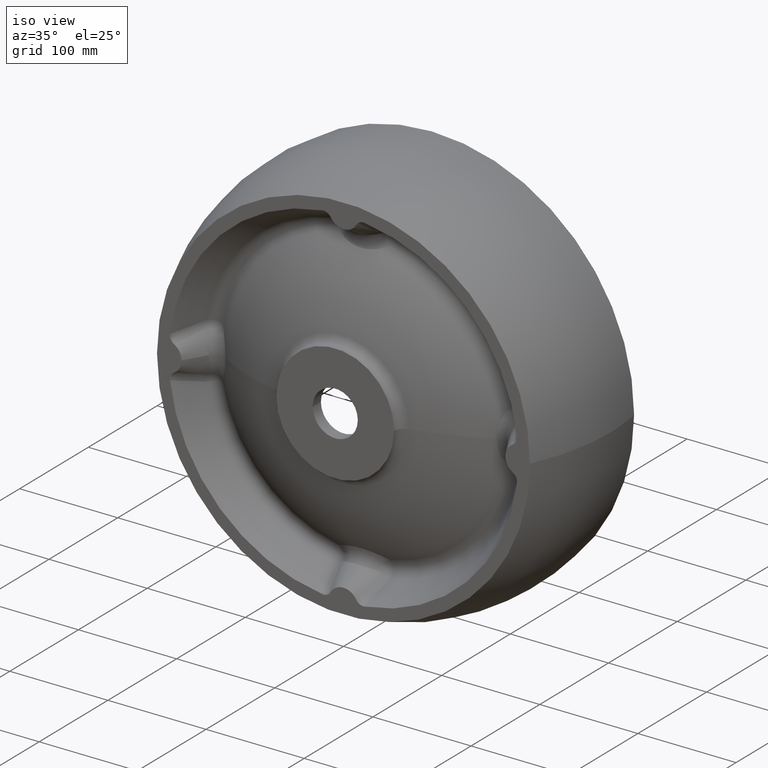
[diagram: clean part render]
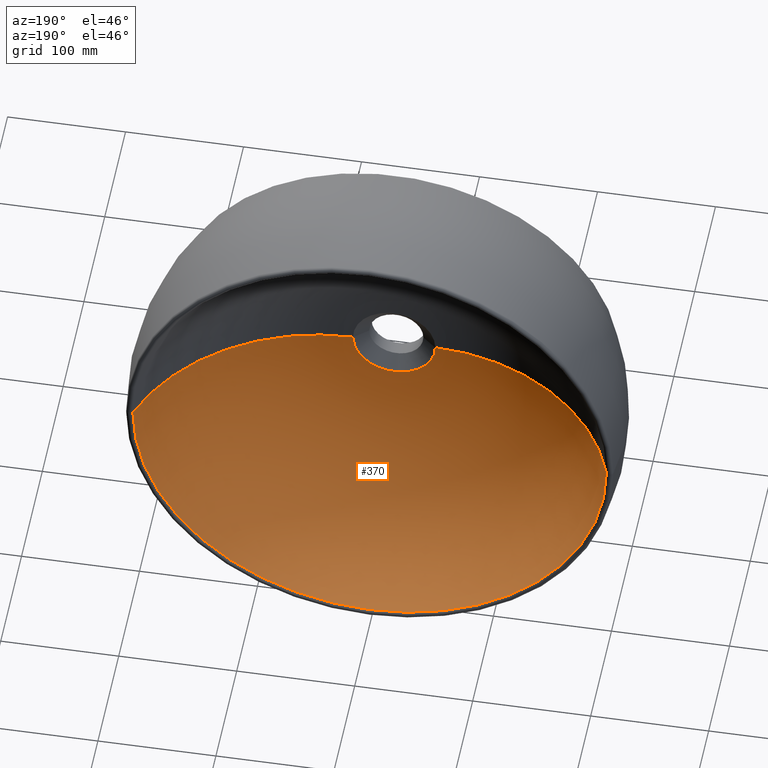
[diagram: tour spotlight — one face highlighted and labeled with its STEP entity id]
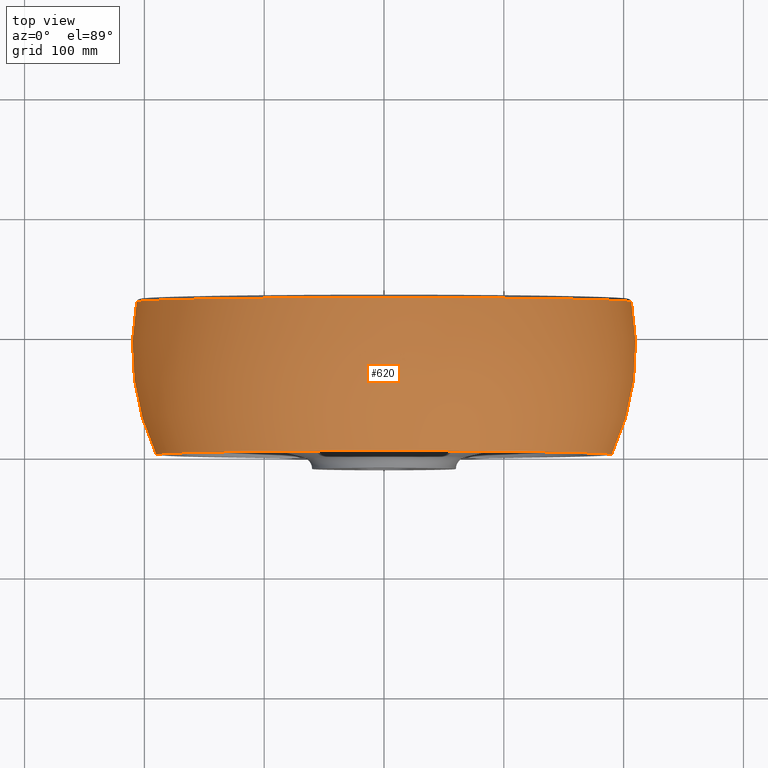
[diagram: tour spotlight — one face highlighted and labeled with its STEP entity id]
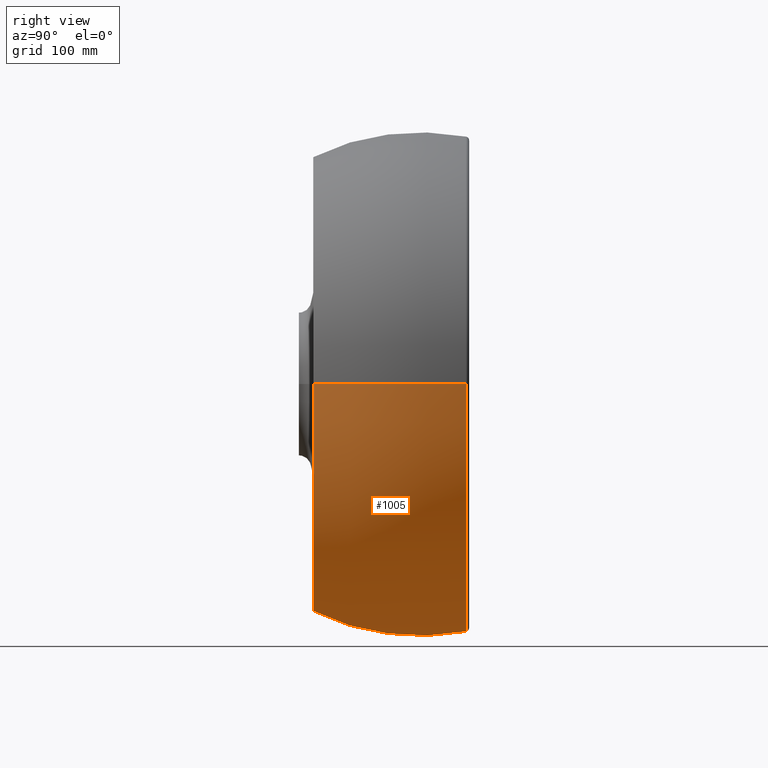
[diagram: tour spotlight — one face highlighted and labeled with its STEP entity id]
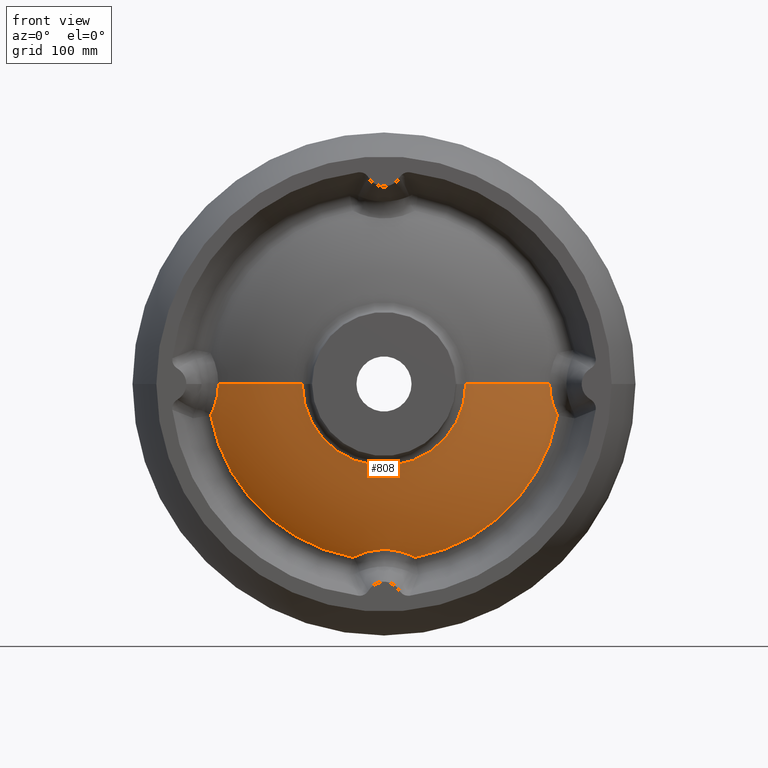
[diagram: tour spotlight — one face highlighted and labeled with its STEP entity id]
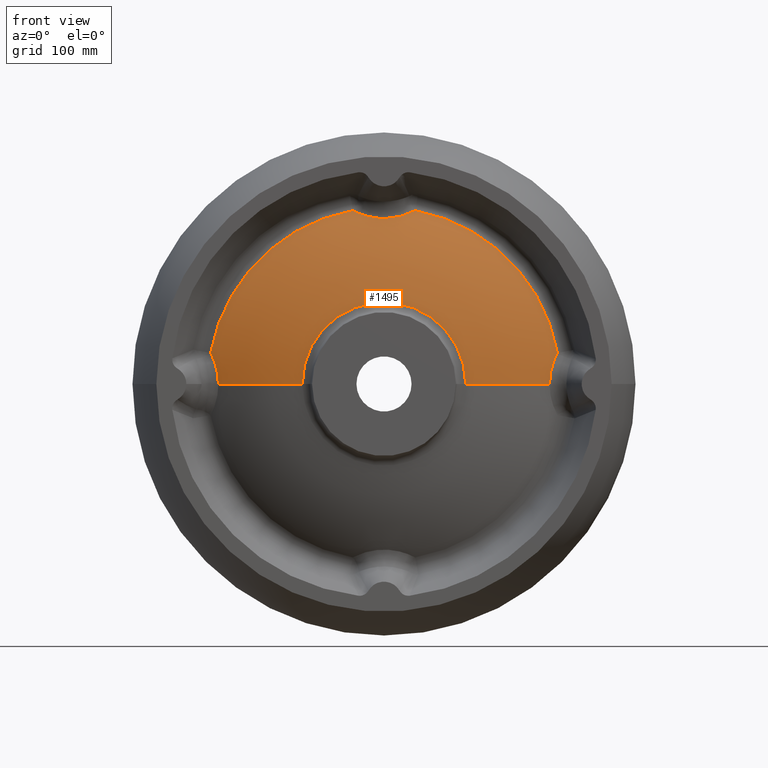
[diagram: tour spotlight — one face highlighted and labeled with its STEP entity id]
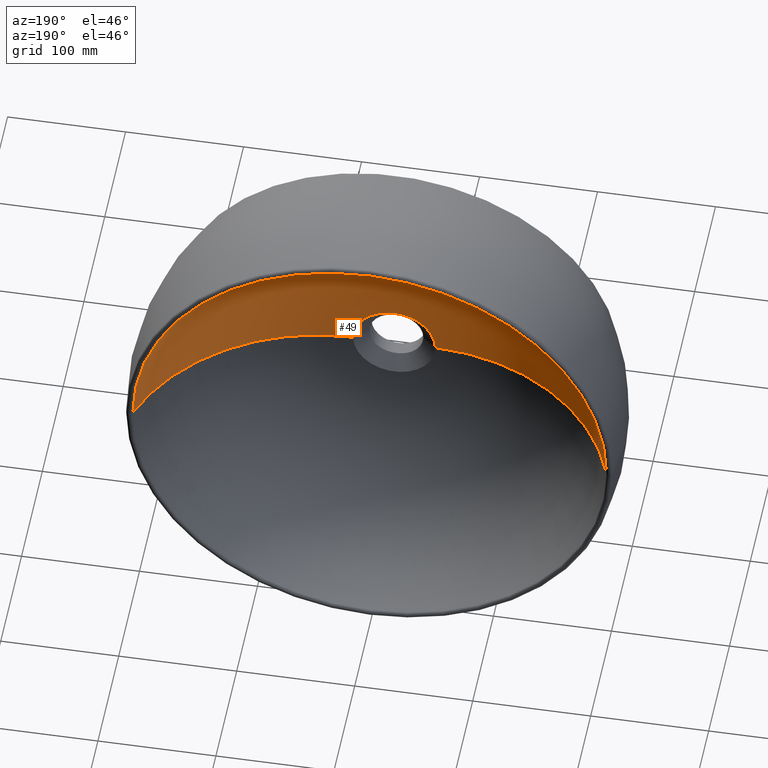
[diagram: tour spotlight — one face highlighted and labeled with its STEP entity id]
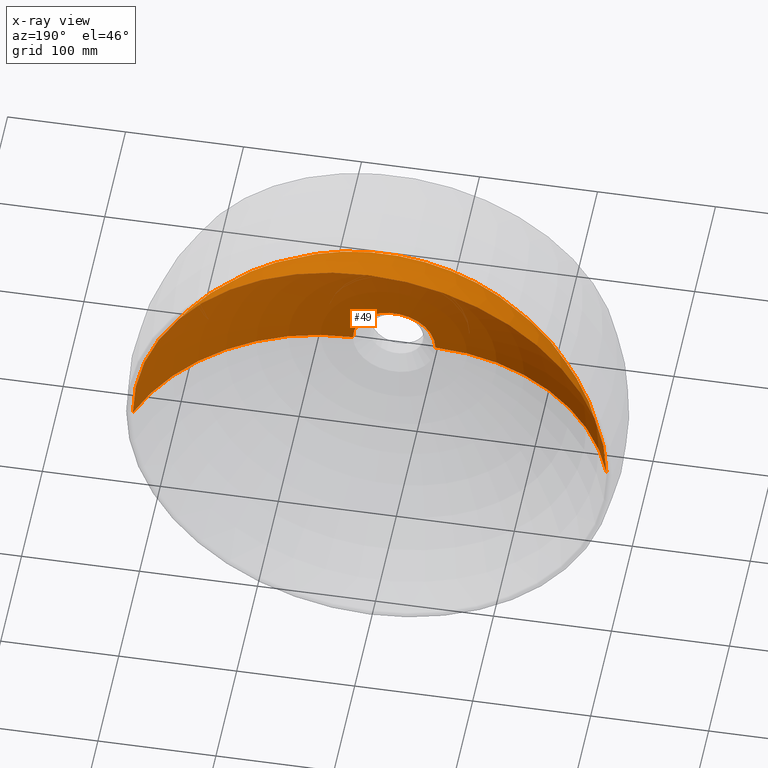
[diagram: x-ray of the same camera — body ghosted, this tour face saturated]
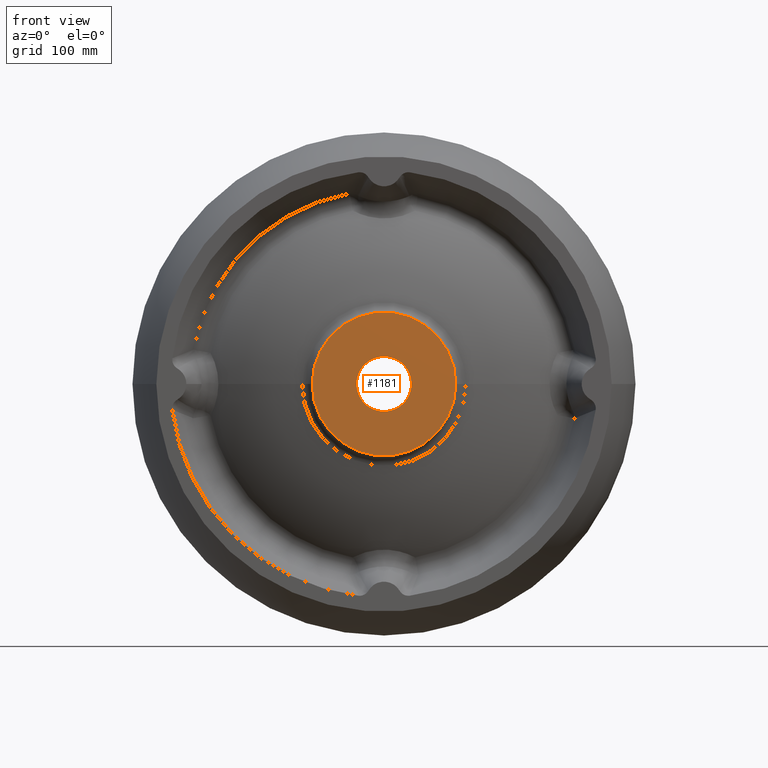
[diagram: tour spotlight — one face highlighted and labeled with its STEP entity id]
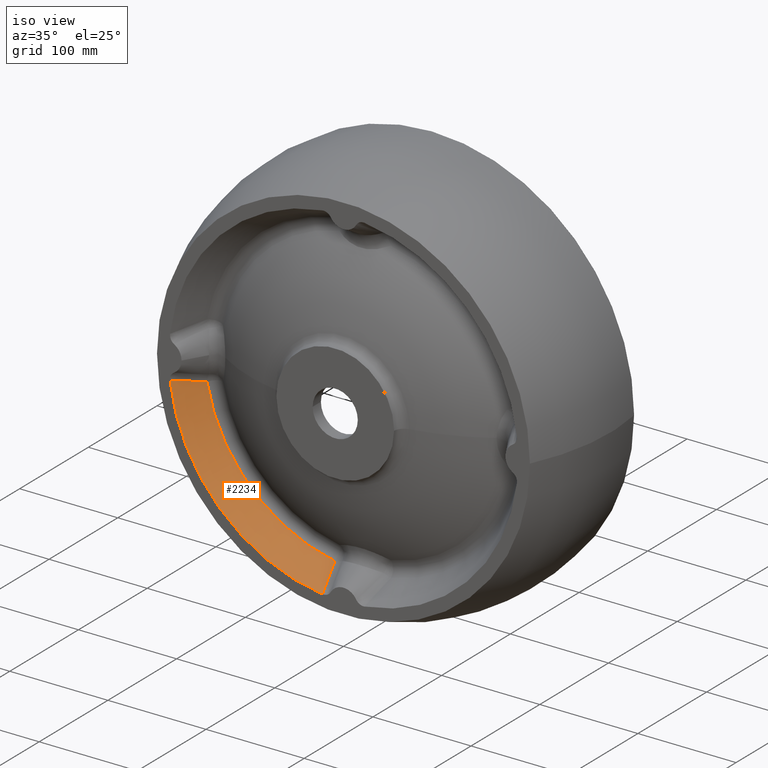
[diagram: tour spotlight — one face highlighted and labeled with its STEP entity id]
A machine part: a face-by-face anatomy tour. The part has 51 B-rep faces; the first image is the clean iso view, then the 8 largest visible faces are spotlighted one at a time (largest first), each with its STEP entity span.

Face 1 — auxiliary view, entity #370. In plain terms, the highlighted toroidal blend (fillet) surface has major radius 34.9175 mm and minor (blend) radius 175.447 mm.
Definition (entity closure, byte-faithful):
#37 = VERTEX_POINT ( 'NONE', #1243 ) ;
#73 = CARTESIAN_POINT ( 'NONE',  ( 200.6871858738753900, 127.9825983199425500, 2.457709198103315300E-014 ) ) ;
#122 = DIRECTION ( 'NONE',  ( -1.246832498358330100E-016, 1.000000000000000000, -0.0000000000000000000 ) ) ;
#141 = DIRECTION ( 'NONE',  ( -1.000000000000000000, -1.490417433511954700E-016, 0.0000000000000000000 ) ) ;
#165 = DIRECTION ( 'NONE',  ( -1.224646799147353200E-016, -1.526929428187426500E-032, 1.000000000000000000 ) ) ;
#167 = CIRCLE ( 'NONE', #792, 175.4473580837705500 ) ;
#184 = EDGE_LOOP ( 'NONE', ( #2058, #474, #247, #1208 ) ) ;
#236 = CARTESIAN_POINT ( 'NONE',  ( -200.6871858738754500, 127.9825983199425000, 0.0000000000000000000 ) ) ;
#247 = ORIENTED_EDGE ( 'NONE', *, *, #408, .T. ) ;
#289 = FACE_OUTER_BOUND ( 'NONE', #184, .T. ) ;
#336 = VERTEX_POINT ( 'NONE', #73 ) ;
#370 = ADVANCED_FACE ( 'NONE', ( #289 ), #778, .F. ) ;
#395 = AXIS2_PLACEMENT_3D ( 'NONE', #2262, #2094, #2229 ) ;
#408 = EDGE_CURVE ( 'NONE', #336, #618, #2152, .T. ) ;
#422 = VERTEX_POINT ( 'NONE', #2117 ) ;
#439 = CIRCLE ( 'NONE', #1444, 34.91753592594217500 ) ;
#474 = ORIENTED_EDGE ( 'NONE', *, *, #546, .T. ) ;
#544 = AXIS2_PLACEMENT_3D ( 'NONE', #1172, #1341, #2089 ) ;
#546 = EDGE_CURVE ( 'NONE', #422, #336, #167, .T. ) ;
#618 = VERTEX_POINT ( 'NONE', #236 ) ;
#661 = EDGE_CURVE ( 'NONE', #37, #618, #992, .T. ) ;
#778 = TOROIDAL_SURFACE ( 'NONE', #395, 34.91753592594216100, 175.4473580837705500 ) ;
#792 = AXIS2_PLACEMENT_3D ( 'NONE', #1062, #165, #2187 ) ;
#811 = EDGE_CURVE ( 'NONE', #422, #37, #439, .T. ) ;
#891 = CARTESIAN_POINT ( 'NONE',  ( -1.246832498358331900E-015, 10.00000000000001400, 0.0000000000000000000 ) ) ;
#903 = DIRECTION ( 'NONE',  ( -1.000000000000000000, -1.383026798386234700E-016, 0.0000000000000000000 ) ) ;
#992 = CIRCLE ( 'NONE', #544, 175.4473580837705500 ) ;
#1062 = CARTESIAN_POINT ( 'NONE',  ( 34.91753592594214000, 185.4473580837705500, 4.276164860581778200E-015 ) ) ;
#1172 = CARTESIAN_POINT ( 'NONE',  ( -34.91753592594218200, 185.4473580837705500, 0.0000000000000000000 ) ) ;
#1208 = ORIENTED_EDGE ( 'NONE', *, *, #661, .F. ) ;
#1243 = CARTESIAN_POINT ( 'NONE',  ( -34.91753592594217500, 10.00000000000000900, 0.0000000000000000000 ) ) ;
#1341 = DIRECTION ( 'NONE',  ( 0.0000000000000000000, -0.0000000000000000000, -1.000000000000000000 ) ) ;
#1444 = AXIS2_PLACEMENT_3D ( 'NONE', #891, #122, #141 ) ;
#1609 = DIRECTION ( 'NONE',  ( -1.246832498358330100E-016, 1.000000000000000000, -0.0000000000000000000 ) ) ;
#1831 = AXIS2_PLACEMENT_3D ( 'NONE', #2025, #1609, #903 ) ;
#2025 = CARTESIAN_POINT ( 'NONE',  ( -1.595728628096445400E-014, 127.9825983199425300, 0.0000000000000000000 ) ) ;
#2058 = ORIENTED_EDGE ( 'NONE', *, *, #811, .F. ) ;
#2089 = DIRECTION ( 'NONE',  ( -1.000000000000000000, 0.0000000000000000000, 0.0000000000000000000 ) ) ;
#2094 = DIRECTION ( 'NONE',  ( -1.246832498358330100E-016, 1.000000000000000000, -0.0000000000000000000 ) ) ;
#2117 = CARTESIAN_POINT ( 'NONE',  ( 34.91753592594217500, 10.00000000000002000, 4.276164860581779800E-015 ) ) ;
#2152 = CIRCLE ( 'NONE', #1831, 200.6871858738754200 ) ;
#2187 = DIRECTION ( 'NONE',  ( 1.000000000000000000, 0.0000000000000000000, 1.224646799147353500E-016 ) ) ;
#2229 = DIRECTION ( 'NONE',  ( -1.000000000000000000, -1.246832498358330100E-016, 0.0000000000000000000 ) ) ;
#2262 = CARTESIAN_POINT ( 'NONE',  ( -2.081668171172168500E-014, 185.4473580837705500, 0.0000000000000000000 ) ) ;

Face 2 — top view, entity #620. In plain terms, the highlighted toroidal blend (fillet) surface has major radius 0.7295 mm and minor (blend) radius 209.27 mm.
Definition (entity closure, byte-faithful):
#63 = CARTESIAN_POINT ( 'NONE',  ( 190.0000000000000000, 4.737963493761654400E-014, 2.427685421779522900E-014 ) ) ;
#237 = AXIS2_PLACEMENT_3D ( 'NONE', #1234, #649, #1015 ) ;
#251 = CARTESIAN_POINT ( 'NONE',  ( -2.953723430028702900E-030, 2.368981746880827200E-014, 0.0000000000000000000 ) ) ;
#285 = VERTEX_POINT ( 'NONE', #63 ) ;
#298 = EDGE_CURVE ( 'NONE', #1228, #285, #1329, .T. ) ;
#363 = CARTESIAN_POINT ( 'NONE',  ( -1.116728237660069600E-014, 89.27944277731847900, 0.0000000000000000000 ) ) ;
#441 = DIRECTION ( 'NONE',  ( -1.000000000000000000, -1.246832498358330100E-016, 0.0000000000000000000 ) ) ;
#448 = EDGE_CURVE ( 'NONE', #1380, #1962, #2107, .T. ) ;
#577 = AXIS2_PLACEMENT_3D ( 'NONE', #251, #1555, #441 ) ;
#620 = ADVANCED_FACE ( 'NONE', ( #1994 ), #2056, .T. ) ;
#649 = DIRECTION ( 'NONE',  ( -1.224646799147353200E-016, -1.526929428187426500E-032, 1.000000000000000000 ) ) ;
#670 = ORIENTED_EDGE ( 'NONE', *, *, #298, .T. ) ;
#882 = EDGE_CURVE ( 'NONE', #285, #1962, #1376, .T. ) ;
#899 = AXIS2_PLACEMENT_3D ( 'NONE', #1123, #1967, #1118 ) ;
#1015 = DIRECTION ( 'NONE',  ( 1.000000000000000000, 0.0000000000000000000, 1.224646799147353200E-016 ) ) ;
#1112 = DIRECTION ( 'NONE',  ( -1.246832498358330100E-016, 1.000000000000000000, -0.0000000000000000000 ) ) ;
#1118 = DIRECTION ( 'NONE',  ( -1.000000000000000000, -1.344283695583375100E-016, 0.0000000000000000000 ) ) ;
#1123 = CARTESIAN_POINT ( 'NONE',  ( -1.590317498180927100E-014, 127.5486081951548700, 0.0000000000000000000 ) ) ;
#1170 = ORIENTED_EDGE ( 'NONE', *, *, #1401, .F. ) ;
#1228 = VERTEX_POINT ( 'NONE', #1439 ) ;
#1234 = CARTESIAN_POINT ( 'NONE',  ( 0.7295274342879797300, 89.27944277731847900, 8.934134372909691700E-017 ) ) ;
#1244 = ORIENTED_EDGE ( 'NONE', *, *, #448, .F. ) ;
#1329 = CIRCLE ( 'NONE', #577, 190.0000000000000000 ) ;
#1354 = CARTESIAN_POINT ( 'NONE',  ( -206.4711169734443400, 127.5486081951548400, 0.0000000000000000000 ) ) ;
#1358 = EDGE_LOOP ( 'NONE', ( #670, #1489, #1244, #1170 ) ) ;
#1376 = CIRCLE ( 'NONE', #237, 209.2704725657120300 ) ;
#1380 = VERTEX_POINT ( 'NONE', #1354 ) ;
#1399 = CIRCLE ( 'NONE', #1548, 209.2704725657120300 ) ;
#1401 = EDGE_CURVE ( 'NONE', #1228, #1380, #1399, .T. ) ;
#1402 = CARTESIAN_POINT ( 'NONE',  ( -0.7295274342880020400, 89.27944277731847900, 0.0000000000000000000 ) ) ;
#1406 = DIRECTION ( 'NONE',  ( 0.0000000000000000000, -0.0000000000000000000, -1.000000000000000000 ) ) ;
#1415 = DIRECTION ( 'NONE',  ( -1.000000000000000000, 0.0000000000000000000, 0.0000000000000000000 ) ) ;
#1439 = CARTESIAN_POINT ( 'NONE',  ( -190.0000000000000000, 0.0000000000000000000, 0.0000000000000000000 ) ) ;
#1489 = ORIENTED_EDGE ( 'NONE', *, *, #882, .T. ) ;
#1538 = DIRECTION ( 'NONE',  ( -1.000000000000000000, -1.246832498358330100E-016, 0.0000000000000000000 ) ) ;
#1548 = AXIS2_PLACEMENT_3D ( 'NONE', #1402, #1406, #1415 ) ;
#1555 = DIRECTION ( 'NONE',  ( -1.246832498358330100E-016, 1.000000000000000000, -0.0000000000000000000 ) ) ;
#1951 = AXIS2_PLACEMENT_3D ( 'NONE', #363, #1112, #1538 ) ;
#1962 = VERTEX_POINT ( 'NONE', #2157 ) ;
#1967 = DIRECTION ( 'NONE',  ( -1.246832498358330100E-016, 1.000000000000000000, -0.0000000000000000000 ) ) ;
#1994 = FACE_OUTER_BOUND ( 'NONE', #1358, .T. ) ;
#2056 = TOROIDAL_SURFACE ( 'NONE', #1951, 0.7295274342879908300, 209.2704725657120300 ) ;
#2107 = CIRCLE ( 'NONE', #899, 206.4711169734443700 ) ;
#2157 = CARTESIAN_POINT ( 'NONE',  ( 206.4711169734442800, 127.5486081951549000, 2.528541925179073500E-014 ) ) ;

Face 3 — right view, entity #1005. In plain terms, the highlighted toroidal blend (fillet) surface has major radius 0.7295 mm and minor (blend) radius 209.27 mm.
Definition (entity closure, byte-faithful):
#63 = CARTESIAN_POINT ( 'NONE',  ( 190.0000000000000000, 4.737963493761654400E-014, 2.427685421779522900E-014 ) ) ;
#116 = ORIENTED_EDGE ( 'NONE', *, *, #882, .F. ) ;
#129 = EDGE_LOOP ( 'NONE', ( #116, #479, #1130, #1759 ) ) ;
#217 = DIRECTION ( 'NONE',  ( -1.000000000000000000, -1.344283695583375100E-016, 0.0000000000000000000 ) ) ;
#237 = AXIS2_PLACEMENT_3D ( 'NONE', #1234, #649, #1015 ) ;
#285 = VERTEX_POINT ( 'NONE', #63 ) ;
#479 = ORIENTED_EDGE ( 'NONE', *, *, #1340, .T. ) ;
#649 = DIRECTION ( 'NONE',  ( -1.224646799147353200E-016, -1.526929428187426500E-032, 1.000000000000000000 ) ) ;
#743 = DIRECTION ( 'NONE',  ( -1.246832498358330100E-016, 1.000000000000000000, -0.0000000000000000000 ) ) ;
#882 = EDGE_CURVE ( 'NONE', #285, #1962, #1376, .T. ) ;
#1005 = ADVANCED_FACE ( 'NONE', ( #1247 ), #2191, .T. ) ;
#1015 = DIRECTION ( 'NONE',  ( 1.000000000000000000, 0.0000000000000000000, 1.224646799147353200E-016 ) ) ;
#1129 = AXIS2_PLACEMENT_3D ( 'NONE', #1614, #1382, #1924 ) ;
#1130 = ORIENTED_EDGE ( 'NONE', *, *, #1401, .T. ) ;
#1228 = VERTEX_POINT ( 'NONE', #1439 ) ;
#1232 = AXIS2_PLACEMENT_3D ( 'NONE', #1762, #2101, #1870 ) ;
#1234 = CARTESIAN_POINT ( 'NONE',  ( 0.7295274342879797300, 89.27944277731847900, 8.934134372909691700E-017 ) ) ;
#1247 = FACE_OUTER_BOUND ( 'NONE', #129, .T. ) ;
#1340 = EDGE_CURVE ( 'NONE', #285, #1228, #1936, .T. ) ;
#1354 = CARTESIAN_POINT ( 'NONE',  ( -206.4711169734443400, 127.5486081951548400, 0.0000000000000000000 ) ) ;
#1376 = CIRCLE ( 'NONE', #237, 209.2704725657120300 ) ;
#1380 = VERTEX_POINT ( 'NONE', #1354 ) ;
#1382 = DIRECTION ( 'NONE',  ( -1.246832498358330100E-016, 1.000000000000000000, -0.0000000000000000000 ) ) ;
#1399 = CIRCLE ( 'NONE', #1548, 209.2704725657120300 ) ;
#1401 = EDGE_CURVE ( 'NONE', #1228, #1380, #1399, .T. ) ;
#1402 = CARTESIAN_POINT ( 'NONE',  ( -0.7295274342880020400, 89.27944277731847900, 0.0000000000000000000 ) ) ;
#1406 = DIRECTION ( 'NONE',  ( 0.0000000000000000000, -0.0000000000000000000, -1.000000000000000000 ) ) ;
#1415 = DIRECTION ( 'NONE',  ( -1.000000000000000000, 0.0000000000000000000, 0.0000000000000000000 ) ) ;
#1439 = CARTESIAN_POINT ( 'NONE',  ( -190.0000000000000000, 0.0000000000000000000, 0.0000000000000000000 ) ) ;
#1548 = AXIS2_PLACEMENT_3D ( 'NONE', #1402, #1406, #1415 ) ;
#1614 = CARTESIAN_POINT ( 'NONE',  ( -1.116728237660069600E-014, 89.27944277731847900, 0.0000000000000000000 ) ) ;
#1657 = AXIS2_PLACEMENT_3D ( 'NONE', #2001, #743, #217 ) ;
#1672 = EDGE_CURVE ( 'NONE', #1962, #1380, #2112, .T. ) ;
#1759 = ORIENTED_EDGE ( 'NONE', *, *, #1672, .F. ) ;
#1762 = CARTESIAN_POINT ( 'NONE',  ( -2.953723430028702900E-030, 2.368981746880827200E-014, 0.0000000000000000000 ) ) ;
#1870 = DIRECTION ( 'NONE',  ( -1.000000000000000000, -1.246832498358330100E-016, 0.0000000000000000000 ) ) ;
#1924 = DIRECTION ( 'NONE',  ( -1.000000000000000000, -1.246832498358330100E-016, 0.0000000000000000000 ) ) ;
#1936 = CIRCLE ( 'NONE', #1232, 190.0000000000000000 ) ;
#1962 = VERTEX_POINT ( 'NONE', #2157 ) ;
#2001 = CARTESIAN_POINT ( 'NONE',  ( -1.590317498180927100E-014, 127.5486081951548700, 0.0000000000000000000 ) ) ;
#2101 = DIRECTION ( 'NONE',  ( -1.246832498358330100E-016, 1.000000000000000000, -0.0000000000000000000 ) ) ;
#2112 = CIRCLE ( 'NONE', #1657, 206.4711169734443700 ) ;
#2157 = CARTESIAN_POINT ( 'NONE',  ( 206.4711169734442800, 127.5486081951549000, 2.528541925179073500E-014 ) ) ;
#2191 = TOROIDAL_SURFACE ( 'NONE', #1129, 0.7295274342879908300, 209.2704725657120300 ) ;

Face 4 — front view, entity #808. In plain terms, the highlighted toroidal blend (fillet) surface has major radius 34.9175 mm and minor (blend) radius 190.447 mm.
Definition (entity closure, byte-faithful):
#1 = B_SPLINE_CURVE_WITH_KNOTS ( 'NONE', 3,
 ( #913, #1099, #166, #2166, #2325, #8, #1280, #1471, #360, #1651, #550, #1823, #740, #923 ),
 .UNSPECIFIED., .F., .F.,
 ( 4, 2, 2, 2, 2, 2, 4 ),
 ( 0.02797634872669713100, 0.03499669516037323000, 0.03850686837721127600, 0.04026195498563030200, 0.04201704159404932900, 0.04903738802772543400, 0.05605773446140153300 ),
 .UNSPECIFIED. ) ;
#8 = CARTESIAN_POINT ( 'NONE',  ( -139.3117107795060900, 26.44342730511659300, -10.96060776052701200 ) ) ;
#16 = VERTEX_POINT ( 'NONE', #1773 ) ;
#17 = CARTESIAN_POINT ( 'NONE',  ( -4.634869292579189400, 25.60293030891958600, -138.3821436629860100 ) ) ;
#31 = CARTESIAN_POINT ( 'NONE',  ( -5.792400240289814500, 25.70404644992889600, -138.4945741032052000 ) ) ;
#42 = ORIENTED_EDGE ( 'NONE', *, *, #2055, .T. ) ;
#55 = AXIS2_PLACEMENT_3D ( 'NONE', #1300, #767, #612 ) ;
#95 = DIRECTION ( 'NONE',  ( -1.000000000000000000, -1.270863569067960000E-016, 0.0000000000000000000 ) ) ;
#110 = EDGE_CURVE ( 'NONE', #1947, #777, #602, .T. ) ;
#121 = CARTESIAN_POINT ( 'NONE',  ( 144.7115772570926400, 31.50536291684925800, -26.07916365427232800 ) ) ;
#124 = ORIENTED_EDGE ( 'NONE', *, *, #110, .T. ) ;
#130 = CARTESIAN_POINT ( 'NONE',  ( 138.1957385302950500, 25.43545518932287300, 1.814614989980718300E-014 ) ) ;
#154 = EDGE_CURVE ( 'NONE', #2150, #1785, #1, .T. ) ;
#166 = CARTESIAN_POINT ( 'NONE',  ( -138.3478437139031900, 25.57166501925993500, -4.663430202324609500 ) ) ;
#174 = CIRCLE ( 'NONE', #1586, 147.0427263387815600 ) ;
#176 = CARTESIAN_POINT ( 'NONE',  ( 138.9448507863877500, 26.11027877369582800, -9.266620753316917800 ) ) ;
#209 = CARTESIAN_POINT ( 'NONE',  ( -24.16884848086199600, 30.55137264298152300, -143.7249666114321700 ) ) ;
#255 = AXIS2_PLACEMENT_3D ( 'NONE', #2269, #2123, #1753 ) ;
#328 = CARTESIAN_POINT ( 'NONE',  ( -26.07916365427220400, 31.50536291684923600, -144.7115772570926700 ) ) ;
#329 = CARTESIAN_POINT ( 'NONE',  ( 138.1957385302950700, 25.43545518932287000, -0.5836192269230873200 ) ) ;
#339 = CARTESIAN_POINT ( 'NONE',  ( -11.48335970313818100, 26.50144153973265300, -139.3772878799398400 ) ) ;
#352 = CARTESIAN_POINT ( 'NONE',  ( 138.3859552628306900, 25.60635840335742200, -4.678367775238216500 ) ) ;
#360 = CARTESIAN_POINT ( 'NONE',  ( -139.8226340615370600, 26.90911096925808000, -13.20944342382573000 ) ) ;
#369 = CARTESIAN_POINT ( 'NONE',  ( -3.928191035730102100E-015, 31.50536291684923600, 0.0000000000000000000 ) ) ;
#483 = CARTESIAN_POINT ( 'NONE',  ( -14.79810668101359800, 27.28557607593525700, -140.2338409938421900 ) ) ;
#489 = CARTESIAN_POINT ( 'NONE',  ( 143.7268152525034300, 30.55316016231314400, -24.17242789398122900 ) ) ;
#527 = CARTESIAN_POINT ( 'NONE',  ( -2.881766182267012400, 25.50167712596579200, -138.2694873525572300 ) ) ;
#530 = EDGE_CURVE ( 'NONE', #1597, #1639, #1922, .T. ) ;
#550 = CARTESIAN_POINT ( 'NONE',  ( -141.2324741720905200, 28.20496180814722100, -18.08932627534856900 ) ) ;
#551 = CARTESIAN_POINT ( 'NONE',  ( 138.1957385302950500, 25.43545518932287300, 1.814614989980718300E-014 ) ) ;
#556 = CARTESIAN_POINT ( 'NONE',  ( -9.232728052272889800, 26.10480239359268900, -138.9387971792581300 ) ) ;
#568 = DIRECTION ( 'NONE',  ( -1.000000000000000000, -1.415689319018795900E-016, 0.0000000000000000000 ) ) ;
#602 = B_SPLINE_CURVE_WITH_KNOTS ( 'NONE', 3,
 ( #121, #489, #1770, #678, #857, #2115, #1119, #2004, #176, #1107, #352, #1233, #1053, #1417, #329, #130 ),
 .UNSPECIFIED., .F., .F.,
 ( 4, 2, 2, 2, 2, 2, 2, 4 ),
 ( 2.525795506525165700E-017, 0.006994087181674308800, 0.01049113077251145500, 0.01398817436334860200, 0.02098226154502289300, 0.02447930513586004200, 0.02622782693127861600, 0.02797634872669719000 ),
 .UNSPECIFIED. ) ;
#612 = DIRECTION ( 'NONE',  ( 1.000000000000000000, 0.0000000000000000000, 1.224646799147353500E-016 ) ) ;
#669 = CARTESIAN_POINT ( 'NONE',  ( -19.09328802712417400, 28.57079762660326600, -141.6227430578900900 ) ) ;
#678 = CARTESIAN_POINT ( 'NONE',  ( 141.6278034052004400, 28.57552132977699300, -19.10696381918353400 ) ) ;
#740 = CARTESIAN_POINT ( 'NONE',  ( -143.7243131481982900, 30.55074078524487300, -24.16758321909276900 ) ) ;
#758 = CIRCLE ( 'NONE', #1162, 190.4473580837705500 ) ;
#767 = DIRECTION ( 'NONE',  ( -1.224646799147353200E-016, -1.526929428187426500E-032, 1.000000000000000000 ) ) ;
#777 = VERTEX_POINT ( 'NONE', #551 ) ;
#785 = CIRCLE ( 'NONE', #1114, 147.0427263387815600 ) ;
#788 = VERTEX_POINT ( 'NONE', #1912 ) ;
#808 = ADVANCED_FACE ( 'NONE', ( #1416 ), #864, .T. ) ;
#857 = CARTESIAN_POINT ( 'NONE',  ( 141.2534070832973000, 28.22715972033250500, -18.05773549750978900 ) ) ;
#864 = TOROIDAL_SURFACE ( 'NONE', #255, 34.91753592594216100, 190.4473580837705500 ) ;
#913 = CARTESIAN_POINT ( 'NONE',  ( -138.1957385302950700, 25.43545518932284500, 1.391924467846939200E-015 ) ) ;
#923 = CARTESIAN_POINT ( 'NONE',  ( -144.7115772570926400, 31.50536291684921500, -26.07916365427226100 ) ) ;
#949 = DIRECTION ( 'NONE',  ( -1.000000000000000000, -1.415689319018795900E-016, 0.0000000000000000000 ) ) ;
#950 = CARTESIAN_POINT ( 'NONE',  ( -22.18694516289957300, 29.69608367316477200, -142.8233481063606700 ) ) ;
#1022 = CARTESIAN_POINT ( 'NONE',  ( -144.7115772570926400, 31.50536291684921500, -26.07916365427226100 ) ) ;
#1041 = EDGE_CURVE ( 'NONE', #788, #2150, #758, .T. ) ;
#1053 = CARTESIAN_POINT ( 'NONE',  ( 138.2433338398814400, 25.47818938152622800, -2.341699018586676800 ) ) ;
#1070 = AXIS2_PLACEMENT_3D ( 'NONE', #2258, #1202, #95 ) ;
#1099 = CARTESIAN_POINT ( 'NONE',  ( -138.1957385302950500, 25.43545518932283400, -2.343241685113553400 ) ) ;
#1107 = CARTESIAN_POINT ( 'NONE',  ( 138.4990587697556900, 25.70808492369930700, -5.833463947669876900 ) ) ;
#1114 = AXIS2_PLACEMENT_3D ( 'NONE', #369, #1825, #568 ) ;
#1119 = CARTESIAN_POINT ( 'NONE',  ( 140.2402283066196800, 27.29144248704205800, -14.82072528713979600 ) ) ;
#1132 = CARTESIAN_POINT ( 'NONE',  ( 4.706655102751168900, 25.57521042369710800, -138.3517901560630900 ) ) ;
#1138 = CARTESIAN_POINT ( 'NONE',  ( -18.04189608469079800, 28.22203283242793900, -141.2478898796245800 ) ) ;
#1162 = AXIS2_PLACEMENT_3D ( 'NONE', #2135, #2213, #2168 ) ;
#1184 = CARTESIAN_POINT ( 'NONE',  ( 26.07916365427227800, 31.50536291684923600, -144.7115772570926400 ) ) ;
#1202 = DIRECTION ( 'NONE',  ( -1.246832498358330100E-016, 1.000000000000000000, -0.0000000000000000000 ) ) ;
#1233 = CARTESIAN_POINT ( 'NONE',  ( 138.2720433023366400, 25.50397327439436200, -2.928989905635184700 ) ) ;
#1238 = CARTESIAN_POINT ( 'NONE',  ( 2.391098590704023900, 25.43752220590576500, -138.1980411866087500 ) ) ;
#1255 = CARTESIAN_POINT ( 'NONE',  ( 11.55864991913489900, 26.55834186934658100, -139.4380729879905500 ) ) ;
#1280 = CARTESIAN_POINT ( 'NONE',  ( -139.4316466850617400, 26.55249279104388200, -11.52904797783432200 ) ) ;
#1289 = CARTESIAN_POINT ( 'NONE',  ( -0.5320436724767294600, 25.43496716205074600, -138.1951948679561300 ) ) ;
#1300 = CARTESIAN_POINT ( 'NONE',  ( 34.91753592594214000, 185.4473580837705500, 4.276164860581778200E-015 ) ) ;
#1316 = CARTESIAN_POINT ( 'NONE',  ( 18.10493644279772200, 28.21014859856535400, -141.2380483301202800 ) ) ;
#1416 = FACE_OUTER_BOUND ( 'NONE', #1578, .T. ) ;
#1417 = CARTESIAN_POINT ( 'NONE',  ( 138.2051974294128100, 25.44394474952335700, -1.168673500111595800 ) ) ;
#1421 = CARTESIAN_POINT ( 'NONE',  ( 144.7115772570926400, 31.50536291684925800, -26.07916365427232800 ) ) ;
#1449 = ORIENTED_EDGE ( 'NONE', *, *, #1685, .F. ) ;
#1456 = CARTESIAN_POINT ( 'NONE',  ( 9.287961107196478500, 26.14739867800217300, -138.9856321067893200 ) ) ;
#1461 = CARTESIAN_POINT ( 'NONE',  ( -3.928191035730102100E-015, 31.50536291684923600, 0.0000000000000000000 ) ) ;
#1471 = CARTESIAN_POINT ( 'NONE',  ( -139.6870126194121200, 26.78524802547948300, -12.65289556546486500 ) ) ;
#1509 = CARTESIAN_POINT ( 'NONE',  ( -26.07916365427220400, 31.50536291684923600, -144.7115772570926700 ) ) ;
#1551 = EDGE_CURVE ( 'NONE', #1947, #1639, #785, .T. ) ;
#1561 = ORIENTED_EDGE ( 'NONE', *, *, #1041, .T. ) ;
#1578 = EDGE_LOOP ( 'NONE', ( #1679, #42, #1561, #1974, #1449, #1906, #2315, #124 ) ) ;
#1586 = AXIS2_PLACEMENT_3D ( 'NONE', #1461, #1853, #949 ) ;
#1592 = EDGE_CURVE ( 'NONE', #16, #777, #1702, .T. ) ;
#1597 = VERTEX_POINT ( 'NONE', #1509 ) ;
#1639 = VERTEX_POINT ( 'NONE', #1184 ) ;
#1651 = CARTESIAN_POINT ( 'NONE',  ( -140.5386780923067000, 27.56474531627707900, -15.96630709803641500 ) ) ;
#1679 = ORIENTED_EDGE ( 'NONE', *, *, #1592, .F. ) ;
#1685 = EDGE_CURVE ( 'NONE', #1597, #1785, #174, .T. ) ;
#1702 = CIRCLE ( 'NONE', #55, 190.4473580837705500 ) ;
#1753 = DIRECTION ( 'NONE',  ( -1.000000000000000000, -1.246832498358330100E-016, 0.0000000000000000000 ) ) ;
#1770 = CARTESIAN_POINT ( 'NONE',  ( 142.8267282704328800, 29.69929048581478200, -22.19437107866133000 ) ) ;
#1772 = CARTESIAN_POINT ( 'NONE',  ( 15.98630910374322600, 27.57052292651742000, -140.5449463218325800 ) ) ;
#1773 = CARTESIAN_POINT ( 'NONE',  ( 68.24979164557511500, -2.060393568604944800, 8.358188888122733200E-015 ) ) ;
#1785 = VERTEX_POINT ( 'NONE', #1022 ) ;
#1816 = CARTESIAN_POINT ( 'NONE',  ( 12.68003437020985300, 26.79116489891455900, -139.6934947882183200 ) ) ;
#1822 = CARTESIAN_POINT ( 'NONE',  ( 22.19742646998453100, 29.70105745853726000, -142.8285598789673300 ) ) ;
#1823 = CARTESIAN_POINT ( 'NONE',  ( -142.8251956344803400, 29.69786581081714500, -22.19003045306696700 ) ) ;
#1825 = DIRECTION ( 'NONE',  ( -1.246832498358330100E-016, 1.000000000000000000, -0.0000000000000000000 ) ) ;
#1834 = CARTESIAN_POINT ( 'NONE',  ( -1.118111927035089400, 25.44297384942291300, -138.2041158477100900 ) ) ;
#1844 = CARTESIAN_POINT ( 'NONE',  ( -2.293174916444863200, 25.47630850622014300, -138.2412395241418000 ) ) ;
#1853 = DIRECTION ( 'NONE',  ( -1.246832498358330100E-016, 1.000000000000000000, -0.0000000000000000000 ) ) ;
#1906 = ORIENTED_EDGE ( 'NONE', *, *, #530, .T. ) ;
#1912 = CARTESIAN_POINT ( 'NONE',  ( -68.24979164557512900, -2.060393568604962600, 0.0000000000000000000 ) ) ;
#1922 = B_SPLINE_CURVE_WITH_KNOTS ( 'NONE', 3,
 ( #328, #209, #950, #669, #1138, #2171, #483, #339, #556, #31, #17, #527, #1844, #1834, #1289, #1238, #1132, #2311, #1456, #2126, #1255, #1816, #2302, #1772, #1316, #1822, #1958, #1982 ),
 .UNSPECIFIED., .F., .F.,
 ( 4, 2, 2, 2, 2, 2, 2, 2, 2, 2, 2, 2, 2, 4 ),
 ( 7.672107528269849500E-017, 0.007007216807675235900, 0.01051082521151282800, 0.01401443361535042000, 0.02102165042302563100, 0.02452525882686323200, 0.02627706302878202900, 0.02802886723070083200, 0.03503608403837602700, 0.03853969244221363400, 0.04029149664413243800, 0.04204330084605124200, 0.04905051765372641500, 0.05605773446140160200 ),
 .UNSPECIFIED. ) ;
#1947 = VERTEX_POINT ( 'NONE', #1421 ) ;
#1958 = CARTESIAN_POINT ( 'NONE',  ( 24.17115830422875400, 30.55252614322948200, -143.7261595540183200 ) ) ;
#1974 = ORIENTED_EDGE ( 'NONE', *, *, #154, .T. ) ;
#1982 = CARTESIAN_POINT ( 'NONE',  ( 26.07916365427227800, 31.50536291684923600, -144.7115772570926400 ) ) ;
#2004 = CARTESIAN_POINT ( 'NONE',  ( 139.3837894275204700, 26.50735579588737400, -11.51264857141319800 ) ) ;
#2055 = EDGE_CURVE ( 'NONE', #16, #788, #2248, .T. ) ;
#2115 = CARTESIAN_POINT ( 'NONE',  ( 140.5599302560791000, 27.58540141752123300, -15.91620292572842600 ) ) ;
#2123 = DIRECTION ( 'NONE',  ( -1.246832498358330100E-016, 1.000000000000000000, -0.0000000000000000000 ) ) ;
#2126 = CARTESIAN_POINT ( 'NONE',  ( 10.99141136314550900, 26.44919812719275900, -139.3180597596851600 ) ) ;
#2135 = CARTESIAN_POINT ( 'NONE',  ( -34.91753592594218200, 185.4473580837705500, 0.0000000000000000000 ) ) ;
#2150 = VERTEX_POINT ( 'NONE', #2174 ) ;
#2166 = CARTESIAN_POINT ( 'NONE',  ( -138.7943631123455900, 25.97450552066981900, -8.110392072985853000 ) ) ;
#2168 = DIRECTION ( 'NONE',  ( -1.000000000000000000, 0.0000000000000000000, 0.0000000000000000000 ) ) ;
#2171 = CARTESIAN_POINT ( 'NONE',  ( -15.89585657301672100, 27.57969089516516800, -140.5537362868637100 ) ) ;
#2174 = CARTESIAN_POINT ( 'NONE',  ( -138.1957385302950700, 25.43545518932284500, 1.391924467846939200E-015 ) ) ;
#2213 = DIRECTION ( 'NONE',  ( 0.0000000000000000000, -0.0000000000000000000, -1.000000000000000000 ) ) ;
#2248 = CIRCLE ( 'NONE', #1070, 68.24979164557521500 ) ;
#2258 = CARTESIAN_POINT ( 'NONE',  ( 2.568965660745150000E-016, -2.060393568604953700, 0.0000000000000000000 ) ) ;
#2269 = CARTESIAN_POINT ( 'NONE',  ( -2.081668171172168500E-014, 185.4473580837705500, 0.0000000000000000000 ) ) ;
#2302 = CARTESIAN_POINT ( 'NONE',  ( 13.23537430613793800, 26.91502976777732700, -139.8291083540497900 ) ) ;
#2311 = CARTESIAN_POINT ( 'NONE',  ( 8.146795806565041400, 25.97953228210380100, -138.7999263908265800 ) ) ;
#2315 = ORIENTED_EDGE ( 'NONE', *, *, #1551, .F. ) ;
#2325 = CARTESIAN_POINT ( 'NONE',  ( -138.9796720708908100, 26.14200196952806700, -9.253809810029260100 ) ) ;

Face 5 — front view, entity #1495. In plain terms, the highlighted toroidal blend (fillet) surface has major radius 34.9175 mm and minor (blend) radius 190.447 mm.
Definition (entity closure, byte-faithful):
#16 = VERTEX_POINT ( 'NONE', #1773 ) ;
#54 = CARTESIAN_POINT ( 'NONE',  ( -2.081668171172168500E-014, 185.4473580837705500, 0.0000000000000000000 ) ) ;
#55 = AXIS2_PLACEMENT_3D ( 'NONE', #1300, #767, #612 ) ;
#132 = CARTESIAN_POINT ( 'NONE',  ( 144.7115772570926400, 31.50536291684925800, 26.07916365427231400 ) ) ;
#137 = CARTESIAN_POINT ( 'NONE',  ( 143.7243131481982900, 30.55074078524489400, 24.16758321909278400 ) ) ;
#151 = CIRCLE ( 'NONE', #1793, 68.24979164557521500 ) ;
#178 = CARTESIAN_POINT ( 'NONE',  ( 14.79810668101360200, 27.28557607593525700, 140.2338409938421400 ) ) ;
#194 = CARTESIAN_POINT ( 'NONE',  ( 1.118111927035075700, 25.44297384942293400, 138.2041158477100600 ) ) ;
#206 = AXIS2_PLACEMENT_3D ( 'NONE', #2242, #1611, #1730 ) ;
#234 = CARTESIAN_POINT ( 'NONE',  ( 0.5320436724767158000, 25.43496716205075400, 138.1951948679561000 ) ) ;
#239 = ORIENTED_EDGE ( 'NONE', *, *, #1916, .F. ) ;
#254 = CARTESIAN_POINT ( 'NONE',  ( 9.232728052272891600, 26.10480239359269900, 138.9387971792581000 ) ) ;
#325 = CARTESIAN_POINT ( 'NONE',  ( -143.7268152525034000, 30.55316016231311200, 24.17242789398119700 ) ) ;
#361 = CARTESIAN_POINT ( 'NONE',  ( -144.7115772570926400, 31.50536291684921500, 26.07916365427226400 ) ) ;
#401 = CARTESIAN_POINT ( 'NONE',  ( -15.98630910374323700, 27.57052292651743000, 140.5449463218326700 ) ) ;
#421 = CARTESIAN_POINT ( 'NONE',  ( -4.706655102751184900, 25.57521042369711100, 138.3517901560631200 ) ) ;
#444 = CIRCLE ( 'NONE', #580, 147.0427263387815600 ) ;
#449 = ORIENTED_EDGE ( 'NONE', *, *, #1041, .F. ) ;
#500 = CARTESIAN_POINT ( 'NONE',  ( -140.2402283066196800, 27.29144248704202300, 14.82072528713979400 ) ) ;
#519 = CARTESIAN_POINT ( 'NONE',  ( -141.2534070832973000, 28.22715972033249400, 18.05773549750979300 ) ) ;
#539 = CARTESIAN_POINT ( 'NONE',  ( -18.10493644279776500, 28.21014859856536800, 141.2380483301203600 ) ) ;
#543 = CARTESIAN_POINT ( 'NONE',  ( 139.8226340615370600, 26.90911096925811600, 13.20944342382576900 ) ) ;
#551 = CARTESIAN_POINT ( 'NONE',  ( 138.1957385302950500, 25.43545518932287300, 1.814614989980718300E-014 ) ) ;
#580 = AXIS2_PLACEMENT_3D ( 'NONE', #1796, #1701, #1710 ) ;
#585 = CARTESIAN_POINT ( 'NONE',  ( -9.287961107196503400, 26.14739867800216200, 138.9856321067893200 ) ) ;
#590 = ORIENTED_EDGE ( 'NONE', *, *, #1252, .T. ) ;
#612 = DIRECTION ( 'NONE',  ( 1.000000000000000000, 0.0000000000000000000, 1.224646799147353500E-016 ) ) ;
#619 = CIRCLE ( 'NONE', #206, 147.0427263387815600 ) ;
#686 = CARTESIAN_POINT ( 'NONE',  ( 142.8251956344803400, 29.69786581081719800, 22.19003045306699200 ) ) ;
#692 = CARTESIAN_POINT ( 'NONE',  ( -140.5599302560791000, 27.58540141752121900, 15.91620292572843300 ) ) ;
#700 = CARTESIAN_POINT ( 'NONE',  ( -139.3837894275205300, 26.50735579588733900, 11.51264857141320500 ) ) ;
#714 = CARTESIAN_POINT ( 'NONE',  ( 2.881766182267012400, 25.50167712596578100, 138.2694873525572300 ) ) ;
#723 = CARTESIAN_POINT ( 'NONE',  ( 11.48335970313818400, 26.50144153973264900, 139.3772878799398100 ) ) ;
#747 = CARTESIAN_POINT ( 'NONE',  ( 2.293174916444848100, 25.47630850622016000, 138.2412395241418000 ) ) ;
#758 = CIRCLE ( 'NONE', #1162, 190.4473580837705500 ) ;
#767 = DIRECTION ( 'NONE',  ( -1.224646799147353200E-016, -1.526929428187426500E-032, 1.000000000000000000 ) ) ;
#777 = VERTEX_POINT ( 'NONE', #551 ) ;
#784 = CARTESIAN_POINT ( 'NONE',  ( 26.07916365427235300, 31.50536291684923600, 144.7115772570926400 ) ) ;
#788 = VERTEX_POINT ( 'NONE', #1912 ) ;
#801 = CARTESIAN_POINT ( 'NONE',  ( -13.23537430613794900, 26.91502976777733000, 139.8291083540497700 ) ) ;
#865 = B_SPLINE_CURVE_WITH_KNOTS ( 'NONE', 3,
 ( #784, #1502, #1127, #1458, #989, #2029, #178, #723, #254, #1312, #954, #714, #747, #194, #234, #1283, #421, #1897, #585, #1494, #1169, #1667, #801, #401, #539, #1110, #1347, #893 ),
 .UNSPECIFIED., .F., .F.,
 ( 4, 2, 2, 2, 2, 2, 2, 2, 2, 2, 2, 2, 2, 4 ),
 ( 5.474694946709483600E-017, 0.007007216807675268000, 0.01051082521151285600, 0.01401443361535044600, 0.02102165042302563800, 0.02452525882686324600, 0.02627706302878204300, 0.02802886723070084300, 0.03503608403837604700, 0.03853969244221365500, 0.04029149664413245900, 0.04204330084605125600, 0.04905051765372645700, 0.05605773446140165100 ),
 .UNSPECIFIED. ) ;
#871 = EDGE_LOOP ( 'NONE', ( #590, #968, #1930, #1033, #2298, #239, #1454, #449 ) ) ;
#884 = CARTESIAN_POINT ( 'NONE',  ( -142.8267282704328500, 29.69929048581473200, 22.19437107866131200 ) ) ;
#893 = CARTESIAN_POINT ( 'NONE',  ( -26.07916365427232100, 31.50536291684923600, 144.7115772570926400 ) ) ;
#954 = CARTESIAN_POINT ( 'NONE',  ( 4.634869292579191200, 25.60293030891957900, 138.3821436629860400 ) ) ;
#968 = ORIENTED_EDGE ( 'NONE', *, *, #1592, .T. ) ;
#989 = CARTESIAN_POINT ( 'NONE',  ( 18.04189608469080500, 28.22203283242796700, 141.2478898796246100 ) ) ;
#1000 = VERTEX_POINT ( 'NONE', #1431 ) ;
#1033 = ORIENTED_EDGE ( 'NONE', *, *, #1714, .F. ) ;
#1041 = EDGE_CURVE ( 'NONE', #788, #2150, #758, .T. ) ;
#1065 = EDGE_CURVE ( 'NONE', #2270, #2150, #1874, .T. ) ;
#1075 = CARTESIAN_POINT ( 'NONE',  ( 139.6870126194121700, 26.78524802547954300, 12.65289556546490100 ) ) ;
#1086 = DIRECTION ( 'NONE',  ( -1.246832498358330100E-016, 1.000000000000000000, -0.0000000000000000000 ) ) ;
#1109 = CARTESIAN_POINT ( 'NONE',  ( -141.6278034052004100, 28.57552132977693700, 19.10696381918352300 ) ) ;
#1110 = CARTESIAN_POINT ( 'NONE',  ( -22.19742646998455600, 29.70105745853727100, 142.8285598789673500 ) ) ;
#1127 = CARTESIAN_POINT ( 'NONE',  ( 22.18694516289957600, 29.69608367316479700, 142.8233481063606100 ) ) ;
#1162 = AXIS2_PLACEMENT_3D ( 'NONE', #2135, #2213, #2168 ) ;
#1169 = CARTESIAN_POINT ( 'NONE',  ( -11.55864991913492200, 26.55834186934659900, 139.4380729879905800 ) ) ;
#1252 = EDGE_CURVE ( 'NONE', #788, #16, #151, .T. ) ;
#1264 = EDGE_CURVE ( 'NONE', #777, #1809, #1980, .T. ) ;
#1283 = CARTESIAN_POINT ( 'NONE',  ( -2.391098590704035000, 25.43752220590577600, 138.1980411866087800 ) ) ;
#1300 = CARTESIAN_POINT ( 'NONE',  ( 34.91753592594214000, 185.4473580837705500, 4.276164860581778200E-015 ) ) ;
#1312 = CARTESIAN_POINT ( 'NONE',  ( 5.792400240289813600, 25.70404644992891400, 138.4945741032051400 ) ) ;
#1347 = CARTESIAN_POINT ( 'NONE',  ( -24.17115830422879000, 30.55252614322950000, 143.7261595540182700 ) ) ;
#1431 = CARTESIAN_POINT ( 'NONE',  ( -26.07916365427232100, 31.50536291684923600, 144.7115772570926400 ) ) ;
#1454 = ORIENTED_EDGE ( 'NONE', *, *, #1065, .T. ) ;
#1458 = CARTESIAN_POINT ( 'NONE',  ( 19.09328802712417800, 28.57079762660328000, 141.6227430578900600 ) ) ;
#1474 = CARTESIAN_POINT ( 'NONE',  ( 141.2324741720906000, 28.20496180814727400, 18.08932627534861500 ) ) ;
#1485 = DIRECTION ( 'NONE',  ( -1.000000000000000000, -1.246832498358330100E-016, 0.0000000000000000000 ) ) ;
#1494 = CARTESIAN_POINT ( 'NONE',  ( -10.99141136314554100, 26.44919812719275100, 139.3180597596851800 ) ) ;
#1495 = ADVANCED_FACE ( 'NONE', ( #2219 ), #1811, .T. ) ;
#1501 = CARTESIAN_POINT ( 'NONE',  ( -138.1957385302950700, 25.43545518932284500, 1.391924467846939200E-015 ) ) ;
#1502 = CARTESIAN_POINT ( 'NONE',  ( 24.16884848086198500, 30.55137264298154100, 143.7249666114320800 ) ) ;
#1510 = EDGE_CURVE ( 'NONE', #2247, #1000, #865, .T. ) ;
#1519 = CARTESIAN_POINT ( 'NONE',  ( -138.1957385302950700, 25.43545518932284500, 0.5836192269231044200 ) ) ;
#1530 = CARTESIAN_POINT ( 'NONE',  ( 26.07916365427235300, 31.50536291684923600, 144.7115772570926400 ) ) ;
#1592 = EDGE_CURVE ( 'NONE', #16, #777, #1702, .T. ) ;
#1611 = DIRECTION ( 'NONE',  ( -1.246832498358330100E-016, 1.000000000000000000, -0.0000000000000000000 ) ) ;
#1667 = CARTESIAN_POINT ( 'NONE',  ( -12.68003437020988100, 26.79116489891458700, 139.6934947882183200 ) ) ;
#1690 = CARTESIAN_POINT ( 'NONE',  ( -138.2433338398814400, 25.47818938152615300, 2.341699018586693700 ) ) ;
#1701 = DIRECTION ( 'NONE',  ( -1.246832498358330100E-016, 1.000000000000000000, -0.0000000000000000000 ) ) ;
#1702 = CIRCLE ( 'NONE', #55, 190.4473580837705500 ) ;
#1710 = DIRECTION ( 'NONE',  ( -1.000000000000000000, -1.415689319018795900E-016, 0.0000000000000000000 ) ) ;
#1714 = EDGE_CURVE ( 'NONE', #2247, #1809, #619, .T. ) ;
#1730 = DIRECTION ( 'NONE',  ( -1.000000000000000000, -1.415689319018795900E-016, 0.0000000000000000000 ) ) ;
#1773 = CARTESIAN_POINT ( 'NONE',  ( 68.24979164557511500, -2.060393568604944800, 8.358188888122733200E-015 ) ) ;
#1793 = AXIS2_PLACEMENT_3D ( 'NONE', #1985, #2006, #2158 ) ;
#1796 = CARTESIAN_POINT ( 'NONE',  ( -3.928191035730102100E-015, 31.50536291684923600, 0.0000000000000000000 ) ) ;
#1798 = CARTESIAN_POINT ( 'NONE',  ( -138.2051974294127800, 25.44394474952327600, 1.168673500111612900 ) ) ;
#1809 = VERTEX_POINT ( 'NONE', #2233 ) ;
#1811 = TOROIDAL_SURFACE ( 'NONE', #2008, 34.91753592594216100, 190.4473580837705500 ) ;
#1837 = CARTESIAN_POINT ( 'NONE',  ( 139.4316466850616800, 26.55249279104392800, 11.52904797783434700 ) ) ;
#1856 = CARTESIAN_POINT ( 'NONE',  ( -138.9448507863878000, 26.11027877369582500, 9.266620753316914300 ) ) ;
#1874 = B_SPLINE_CURVE_WITH_KNOTS ( 'NONE', 3,
 ( #361, #325, #884, #1109, #519, #692, #500, #700, #1856, #1964, #2198, #2127, #1690, #1798, #1519, #1501 ),
 .UNSPECIFIED., .F., .F.,
 ( 4, 2, 2, 2, 2, 2, 2, 4 ),
 ( 3.469446951953614200E-018, 0.006994087181674296700, 0.01049113077251143800, 0.01398817436334857900, 0.02098226154502286200, 0.02447930513585999700, 0.02622782693127856400, 0.02797634872669713100 ),
 .UNSPECIFIED. ) ;
#1897 = CARTESIAN_POINT ( 'NONE',  ( -8.146795806565061000, 25.97953228210380800, 138.7999263908265300 ) ) ;
#1912 = CARTESIAN_POINT ( 'NONE',  ( -68.24979164557512900, -2.060393568604962600, 0.0000000000000000000 ) ) ;
#1916 = EDGE_CURVE ( 'NONE', #2270, #1000, #444, .T. ) ;
#1930 = ORIENTED_EDGE ( 'NONE', *, *, #1264, .T. ) ;
#1964 = CARTESIAN_POINT ( 'NONE',  ( -138.4990587697557200, 25.70808492369929600, 5.833463947669879500 ) ) ;
#1980 = B_SPLINE_CURVE_WITH_KNOTS ( 'NONE', 3,
 ( #2014, #2020, #2124, #2318, #2181, #2292, #1837, #1075, #543, #2149, #1474, #686, #137, #132 ),
 .UNSPECIFIED., .F., .F.,
 ( 4, 2, 2, 2, 2, 2, 4 ),
 ( 0.02797634872669719000, 0.03499669516037329200, 0.03850686837721134500, 0.04026195498563036500, 0.04201704159404939100, 0.04903738802772551800, 0.05605773446140163700 ),
 .UNSPECIFIED. ) ;
#1985 = CARTESIAN_POINT ( 'NONE',  ( 2.568965660745150000E-016, -2.060393568604953700, 0.0000000000000000000 ) ) ;
#2006 = DIRECTION ( 'NONE',  ( -1.246832498358330100E-016, 1.000000000000000000, -0.0000000000000000000 ) ) ;
#2008 = AXIS2_PLACEMENT_3D ( 'NONE', #54, #1086, #1485 ) ;
#2014 = CARTESIAN_POINT ( 'NONE',  ( 138.1957385302950500, 25.43545518932287300, 1.814614989980718300E-014 ) ) ;
#2020 = CARTESIAN_POINT ( 'NONE',  ( 138.1957385302951000, 25.43545518932287700, 2.343241685113572400 ) ) ;
#2029 = CARTESIAN_POINT ( 'NONE',  ( 15.89585657301671700, 27.57969089516518200, 140.5537362868636300 ) ) ;
#2057 = CARTESIAN_POINT ( 'NONE',  ( -144.7115772570926400, 31.50536291684921500, 26.07916365427226400 ) ) ;
#2124 = CARTESIAN_POINT ( 'NONE',  ( 138.3478437139031300, 25.57166501925997100, 4.663430202324633500 ) ) ;
#2127 = CARTESIAN_POINT ( 'NONE',  ( -138.2720433023366100, 25.50397327439429400, 2.928989905635202000 ) ) ;
#2135 = CARTESIAN_POINT ( 'NONE',  ( -34.91753592594218200, 185.4473580837705500, 0.0000000000000000000 ) ) ;
#2149 = CARTESIAN_POINT ( 'NONE',  ( 140.5386780923067800, 27.56474531627713300, 15.96630709803646700 ) ) ;
#2150 = VERTEX_POINT ( 'NONE', #2174 ) ;
#2158 = DIRECTION ( 'NONE',  ( -1.000000000000000000, -1.270863569067960000E-016, 0.0000000000000000000 ) ) ;
#2168 = DIRECTION ( 'NONE',  ( -1.000000000000000000, 0.0000000000000000000, 0.0000000000000000000 ) ) ;
#2174 = CARTESIAN_POINT ( 'NONE',  ( -138.1957385302950700, 25.43545518932284500, 1.391924467846939200E-015 ) ) ;
#2181 = CARTESIAN_POINT ( 'NONE',  ( 138.9796720708909000, 26.14200196952811000, 9.253809810029288500 ) ) ;
#2198 = CARTESIAN_POINT ( 'NONE',  ( -138.3859552628306600, 25.60635840335737300, 4.678367775238232400 ) ) ;
#2213 = DIRECTION ( 'NONE',  ( 0.0000000000000000000, -0.0000000000000000000, -1.000000000000000000 ) ) ;
#2219 = FACE_OUTER_BOUND ( 'NONE', #871, .T. ) ;
#2233 = CARTESIAN_POINT ( 'NONE',  ( 144.7115772570926400, 31.50536291684925800, 26.07916365427231400 ) ) ;
#2242 = CARTESIAN_POINT ( 'NONE',  ( -3.928191035730102100E-015, 31.50536291684923600, 0.0000000000000000000 ) ) ;
#2247 = VERTEX_POINT ( 'NONE', #1530 ) ;
#2270 = VERTEX_POINT ( 'NONE', #2057 ) ;
#2292 = CARTESIAN_POINT ( 'NONE',  ( 139.3117107795060900, 26.44342730511663600, 10.96060776052704200 ) ) ;
#2298 = ORIENTED_EDGE ( 'NONE', *, *, #1510, .T. ) ;
#2318 = CARTESIAN_POINT ( 'NONE',  ( 138.7943631123456200, 25.97450552066985800, 8.110392072985879600 ) ) ;

Face 6 — auxiliary view, entity #49. An x-ray twin of the same camera follows (body ghosted, this face saturated) — the face is partly hidden behind the body. In plain terms, the highlighted toroidal blend (fillet) surface has major radius 34.9175 mm and minor (blend) radius 175.447 mm.
Definition (entity closure, byte-faithful):
#28 = DIRECTION ( 'NONE',  ( -1.000000000000000000, -1.490417433511954700E-016, 0.0000000000000000000 ) ) ;
#37 = VERTEX_POINT ( 'NONE', #1243 ) ;
#49 = ADVANCED_FACE ( 'NONE', ( #813 ), #1781, .F. ) ;
#73 = CARTESIAN_POINT ( 'NONE',  ( 200.6871858738753900, 127.9825983199425500, 2.457709198103315300E-014 ) ) ;
#165 = DIRECTION ( 'NONE',  ( -1.224646799147353200E-016, -1.526929428187426500E-032, 1.000000000000000000 ) ) ;
#167 = CIRCLE ( 'NONE', #792, 175.4473580837705500 ) ;
#236 = CARTESIAN_POINT ( 'NONE',  ( -200.6871858738754500, 127.9825983199425000, 0.0000000000000000000 ) ) ;
#286 = AXIS2_PLACEMENT_3D ( 'NONE', #447, #1653, #28 ) ;
#313 = CARTESIAN_POINT ( 'NONE',  ( -2.081668171172168500E-014, 185.4473580837705500, 0.0000000000000000000 ) ) ;
#336 = VERTEX_POINT ( 'NONE', #73 ) ;
#355 = AXIS2_PLACEMENT_3D ( 'NONE', #999, #380, #560 ) ;
#380 = DIRECTION ( 'NONE',  ( -1.246832498358330100E-016, 1.000000000000000000, -0.0000000000000000000 ) ) ;
#422 = VERTEX_POINT ( 'NONE', #2117 ) ;
#447 = CARTESIAN_POINT ( 'NONE',  ( -1.246832498358331900E-015, 10.00000000000001400, 0.0000000000000000000 ) ) ;
#473 = EDGE_LOOP ( 'NONE', ( #1058, #1400, #497, #1037 ) ) ;
#497 = ORIENTED_EDGE ( 'NONE', *, *, #661, .T. ) ;
#544 = AXIS2_PLACEMENT_3D ( 'NONE', #1172, #1341, #2089 ) ;
#546 = EDGE_CURVE ( 'NONE', #422, #336, #167, .T. ) ;
#547 = CIRCLE ( 'NONE', #286, 34.91753592594217500 ) ;
#560 = DIRECTION ( 'NONE',  ( -1.000000000000000000, -1.383026798386234700E-016, 0.0000000000000000000 ) ) ;
#603 = DIRECTION ( 'NONE',  ( -1.246832498358330100E-016, 1.000000000000000000, -0.0000000000000000000 ) ) ;
#618 = VERTEX_POINT ( 'NONE', #236 ) ;
#661 = EDGE_CURVE ( 'NONE', #37, #618, #992, .T. ) ;
#688 = EDGE_CURVE ( 'NONE', #37, #422, #547, .T. ) ;
#792 = AXIS2_PLACEMENT_3D ( 'NONE', #1062, #165, #2187 ) ;
#813 = FACE_OUTER_BOUND ( 'NONE', #473, .T. ) ;
#992 = CIRCLE ( 'NONE', #544, 175.4473580837705500 ) ;
#993 = AXIS2_PLACEMENT_3D ( 'NONE', #313, #603, #1699 ) ;
#999 = CARTESIAN_POINT ( 'NONE',  ( -1.595728628096445400E-014, 127.9825983199425300, 0.0000000000000000000 ) ) ;
#1037 = ORIENTED_EDGE ( 'NONE', *, *, #1460, .T. ) ;
#1058 = ORIENTED_EDGE ( 'NONE', *, *, #546, .F. ) ;
#1062 = CARTESIAN_POINT ( 'NONE',  ( 34.91753592594214000, 185.4473580837705500, 4.276164860581778200E-015 ) ) ;
#1172 = CARTESIAN_POINT ( 'NONE',  ( -34.91753592594218200, 185.4473580837705500, 0.0000000000000000000 ) ) ;
#1243 = CARTESIAN_POINT ( 'NONE',  ( -34.91753592594217500, 10.00000000000000900, 0.0000000000000000000 ) ) ;
#1341 = DIRECTION ( 'NONE',  ( 0.0000000000000000000, -0.0000000000000000000, -1.000000000000000000 ) ) ;
#1400 = ORIENTED_EDGE ( 'NONE', *, *, #688, .F. ) ;
#1460 = EDGE_CURVE ( 'NONE', #618, #336, #2273, .T. ) ;
#1653 = DIRECTION ( 'NONE',  ( -1.246832498358330100E-016, 1.000000000000000000, -0.0000000000000000000 ) ) ;
#1699 = DIRECTION ( 'NONE',  ( -1.000000000000000000, -1.246832498358330100E-016, 0.0000000000000000000 ) ) ;
#1781 = TOROIDAL_SURFACE ( 'NONE', #993, 34.91753592594216100, 175.4473580837705500 ) ;
#2089 = DIRECTION ( 'NONE',  ( -1.000000000000000000, 0.0000000000000000000, 0.0000000000000000000 ) ) ;
#2117 = CARTESIAN_POINT ( 'NONE',  ( 34.91753592594217500, 10.00000000000002000, 4.276164860581779800E-015 ) ) ;
#2187 = DIRECTION ( 'NONE',  ( 1.000000000000000000, 0.0000000000000000000, 1.224646799147353500E-016 ) ) ;
#2273 = CIRCLE ( 'NONE', #355, 200.6871858738754200 ) ;

Face 7 — front view, entity #1181. In plain terms, the highlighted planar face has unit normal (-0, 1, 0).
Definition (entity closure, byte-faithful):
#45 = VERTEX_POINT ( 'NONE', #2052 ) ;
#97 = ORIENTED_EDGE ( 'NONE', *, *, #2108, .T. ) ;
#223 = EDGE_LOOP ( 'NONE', ( #97, #571 ) ) ;
#290 = ORIENTED_EDGE ( 'NONE', *, *, #484, .F. ) ;
#294 = CARTESIAN_POINT ( 'NONE',  ( 1.496198998029996900E-015, -12.00000000000000700, 0.0000000000000000000 ) ) ;
#311 = AXIS2_PLACEMENT_3D ( 'NONE', #503, #1780, #687 ) ;
#324 = DIRECTION ( 'NONE',  ( -1.000000000000000000, -1.156482317317871500E-016, 0.0000000000000000000 ) ) ;
#367 = VERTEX_POINT ( 'NONE', #2071 ) ;
#391 = CARTESIAN_POINT ( 'NONE',  ( -6.451553807694271300E-031, -12.00000000000000500, 0.0000000000000000000 ) ) ;
#484 = EDGE_CURVE ( 'NONE', #2314, #367, #1165, .T. ) ;
#503 = CARTESIAN_POINT ( 'NONE',  ( 1.496198998029996900E-015, -12.00000000000000700, 0.0000000000000000000 ) ) ;
#516 = EDGE_CURVE ( 'NONE', #2295, #45, #667, .T. ) ;
#532 = AXIS2_PLACEMENT_3D ( 'NONE', #391, #1292, #1274 ) ;
#571 = ORIENTED_EDGE ( 'NONE', *, *, #516, .T. ) ;
#584 = PLANE ( 'NONE',  #532 ) ;
#616 = AXIS2_PLACEMENT_3D ( 'NONE', #1491, #1106, #324 ) ;
#667 = CIRCLE ( 'NONE', #1569, 22.99999999999999600 ) ;
#687 = DIRECTION ( 'NONE',  ( -1.000000000000000000, -1.508455196501571700E-016, 0.0000000000000000000 ) ) ;
#762 = EDGE_CURVE ( 'NONE', #367, #2314, #1891, .T. ) ;
#806 = CARTESIAN_POINT ( 'NONE',  ( -60.00000000000000000, -12.00000000000001100, 0.0000000000000000000 ) ) ;
#818 = CIRCLE ( 'NONE', #311, 22.99999999999999600 ) ;
#1006 = CARTESIAN_POINT ( 'NONE',  ( 22.99999999999999600, -12.00000000000000400, 2.816687638038912000E-015 ) ) ;
#1106 = DIRECTION ( 'NONE',  ( -1.246832498358330100E-016, 1.000000000000000000, -0.0000000000000000000 ) ) ;
#1165 = CIRCLE ( 'NONE', #616, 60.00000000000000000 ) ;
#1181 = ADVANCED_FACE ( 'NONE', ( #2134, #1582 ), #584, .F. ) ;
#1274 = DIRECTION ( 'NONE',  ( -1.000000000000000000, -1.246832498358330100E-016, 0.0000000000000000000 ) ) ;
#1292 = DIRECTION ( 'NONE',  ( -1.246832498358330100E-016, 1.000000000000000000, 0.0000000000000000000 ) ) ;
#1480 = AXIS2_PLACEMENT_3D ( 'NONE', #1577, #1997, #1925 ) ;
#1491 = CARTESIAN_POINT ( 'NONE',  ( 1.496198998029996500E-015, -12.00000000000000400, 0.0000000000000000000 ) ) ;
#1569 = AXIS2_PLACEMENT_3D ( 'NONE', #294, #2165, #2178 ) ;
#1577 = CARTESIAN_POINT ( 'NONE',  ( 1.496198998029996500E-015, -12.00000000000000400, 0.0000000000000000000 ) ) ;
#1582 = FACE_BOUND ( 'NONE', #223, .T. ) ;
#1780 = DIRECTION ( 'NONE',  ( -1.246832498358330100E-016, 1.000000000000000000, -0.0000000000000000000 ) ) ;
#1891 = CIRCLE ( 'NONE', #1480, 60.00000000000000000 ) ;
#1925 = DIRECTION ( 'NONE',  ( -1.000000000000000000, -1.156482317317871500E-016, 0.0000000000000000000 ) ) ;
#1997 = DIRECTION ( 'NONE',  ( -1.246832498358330100E-016, 1.000000000000000000, -0.0000000000000000000 ) ) ;
#2052 = CARTESIAN_POINT ( 'NONE',  ( -22.99999999999999600, -12.00000000000001100, 0.0000000000000000000 ) ) ;
#2071 = CARTESIAN_POINT ( 'NONE',  ( 60.00000000000000000, -11.99999999999999600, 7.347880794884118400E-015 ) ) ;
#2108 = EDGE_CURVE ( 'NONE', #45, #2295, #818, .T. ) ;
#2133 = EDGE_LOOP ( 'NONE', ( #290, #2296 ) ) ;
#2134 = FACE_OUTER_BOUND ( 'NONE', #2133, .T. ) ;
#2165 = DIRECTION ( 'NONE',  ( -1.246832498358330100E-016, 1.000000000000000000, -0.0000000000000000000 ) ) ;
#2178 = DIRECTION ( 'NONE',  ( -1.000000000000000000, -1.508455196501571700E-016, 0.0000000000000000000 ) ) ;
#2295 = VERTEX_POINT ( 'NONE', #1006 ) ;
#2296 = ORIENTED_EDGE ( 'NONE', *, *, #762, .F. ) ;
#2314 = VERTEX_POINT ( 'NONE', #806 ) ;

Face 8 — iso view, entity #2234. In plain terms, the highlighted conical surface has half-angle 30 deg.
Definition (entity closure, byte-faithful):
#27 = EDGE_CURVE ( 'NONE', #1935, #1469, #2183, .T. ) ;
#162 = ORIENTED_EDGE ( 'NONE', *, *, #1656, .T. ) ;
#241 = EDGE_LOOP ( 'NONE', ( #1365, #451, #2286, #162 ) ) ;
#249 = CARTESIAN_POINT ( 'NONE',  ( -2.767172476553205900E-030, 2.219361847077827600E-014, 0.0000000000000000000 ) ) ;
#335 = AXIS2_PLACEMENT_3D ( 'NONE', #249, #2106, #472 ) ;
#392 = CARTESIAN_POINT ( 'NONE',  ( -169.3867513109305500, 11.76288286149693400, -24.92367951654272300 ) ) ;
#451 = ORIENTED_EDGE ( 'NONE', *, *, #1179, .T. ) ;
#472 = DIRECTION ( 'NONE',  ( -1.000000000000000000, -1.246832498358330100E-016, 0.0000000000000000000 ) ) ;
#485 = DIRECTION ( 'NONE',  ( -1.246832498358330100E-016, 1.000000000000000000, -0.0000000000000000000 ) ) ;
#504 = CARTESIAN_POINT ( 'NONE',  ( -3.543770345780864200E-015, 28.42218461940034800, 0.0000000000000000000 ) ) ;
#505 = AXIS2_PLACEMENT_3D ( 'NONE', #504, #485, #2300 ) ;
#613 = VERTEX_POINT ( 'NONE', #1349 ) ;
#652 = VERTEX_POINT ( 'NONE', #1122 ) ;
#730 = CARTESIAN_POINT ( 'NONE',  ( -173.7848634752949400, 4.686656889366983800, -22.96954575659357900 ) ) ;
#776 = CARTESIAN_POINT ( 'NONE',  ( -28.65931379613290300, 28.42218461940034400, -159.0286620201842100 ) ) ;
#802 = B_SPLINE_CURVE_WITH_KNOTS ( 'NONE', 3,
 ( #982, #908, #1520, #392, #1440, #730, #1645, #1821 ),
 .UNSPECIFIED., .F., .F.,
 ( 4, 2, 2, 4 ),
 ( 4.234999717485956500E-017, 0.01711223144364189300, 0.02566834716546283200, 0.03422446288728377800 ),
 .UNSPECIFIED. ) ;
#868 = CARTESIAN_POINT ( 'NONE',  ( -27.72300224751000600, 23.63892806522811400, -162.0035003118971100 ) ) ;
#876 = CARTESIAN_POINT ( 'NONE',  ( -26.68644674927077900, 18.87355825015476200, -164.9664699156943200 ) ) ;
#908 = CARTESIAN_POINT ( 'NONE',  ( -162.0035003118972000, 23.63892806522814300, -27.72300224751007000 ) ) ;
#915 = CARTESIAN_POINT ( 'NONE',  ( -24.30111663218697200, 9.398945296449552300, -170.8561134018489700 ) ) ;
#934 = CARTESIAN_POINT ( 'NONE',  ( -22.96954575659353600, 4.686656889367031700, -173.7848634752950000 ) ) ;
#974 = CARTESIAN_POINT ( 'NONE',  ( -21.49595527540268600, 1.951343290871534900E-014, -176.6972662686038100 ) ) ;
#982 = CARTESIAN_POINT ( 'NONE',  ( -159.0286620201841900, 28.42218461940032600, -28.65931379613293500 ) ) ;
#1002 = B_SPLINE_CURVE_WITH_KNOTS ( 'NONE', 3,
 ( #974, #1085, #934, #915, #1660, #876, #868, #776 ),
 .UNSPECIFIED., .F., .F.,
 ( 4, 2, 2, 4 ),
 ( 4.018703144152145400E-017, 0.008556115721820977500, 0.01711223144364191700, 0.03422446288728384100 ),
 .UNSPECIFIED. ) ;
#1085 = CARTESIAN_POINT ( 'NONE',  ( -22.26073404109446600, 2.338270349220107600, -175.2442736087041300 ) ) ;
#1122 = CARTESIAN_POINT ( 'NONE',  ( -21.49595527540268600, 1.951343290871534900E-014, -176.6972662686038100 ) ) ;
#1179 = EDGE_CURVE ( 'NONE', #652, #1935, #1002, .T. ) ;
#1235 = AXIS2_PLACEMENT_3D ( 'NONE', #1876, #2051, #1693 ) ;
#1349 = CARTESIAN_POINT ( 'NONE',  ( -176.6972662686038100, 1.624290753012335600E-016, -21.49595527540276100 ) ) ;
#1365 = ORIENTED_EDGE ( 'NONE', *, *, #1775, .F. ) ;
#1440 = CARTESIAN_POINT ( 'NONE',  ( -170.8561134018490300, 9.398945296449493700, -24.30111663218700700 ) ) ;
#1469 = VERTEX_POINT ( 'NONE', #1475 ) ;
#1475 = CARTESIAN_POINT ( 'NONE',  ( -159.0286620201841900, 28.42218461940032600, -28.65931379613293500 ) ) ;
#1513 = CONICAL_SURFACE ( 'NONE', #1235, 178.0000000000000000, 0.5235987755982951500 ) ;
#1520 = CARTESIAN_POINT ( 'NONE',  ( -164.9664699156942600, 18.87355825015470100, -26.68644674927082500 ) ) ;
#1623 = FACE_OUTER_BOUND ( 'NONE', #241, .T. ) ;
#1645 = CARTESIAN_POINT ( 'NONE',  ( -175.2442736087041600, 2.338270349220124900, -22.26073404109477100 ) ) ;
#1656 = EDGE_CURVE ( 'NONE', #1469, #613, #802, .T. ) ;
#1660 = CARTESIAN_POINT ( 'NONE',  ( -24.92367951654268400, 11.76288286149698300, -169.3867513109305800 ) ) ;
#1693 = DIRECTION ( 'NONE',  ( 1.000000000000000000, 1.246832498358330100E-016, 0.0000000000000000000 ) ) ;
#1775 = EDGE_CURVE ( 'NONE', #652, #613, #2003, .T. ) ;
#1821 = CARTESIAN_POINT ( 'NONE',  ( -176.6972662686038100, 1.624290753012335600E-016, -21.49595527540276100 ) ) ;
#1876 = CARTESIAN_POINT ( 'NONE',  ( -2.767172476553205900E-030, 2.219361847077827600E-014, 0.0000000000000000000 ) ) ;
#1935 = VERTEX_POINT ( 'NONE', #2114 ) ;
#2003 = CIRCLE ( 'NONE', #335, 178.0000000000000000 ) ;
#2051 = DIRECTION ( 'NONE',  ( 1.246832498358330100E-016, -1.000000000000000000, 0.0000000000000000000 ) ) ;
#2106 = DIRECTION ( 'NONE',  ( -1.246832498358330100E-016, 1.000000000000000000, -0.0000000000000000000 ) ) ;
#2114 = CARTESIAN_POINT ( 'NONE',  ( -28.65931379613290300, 28.42218461940034400, -159.0286620201842100 ) ) ;
#2183 = CIRCLE ( 'NONE', #505, 161.5904440590321100 ) ;
#2234 = ADVANCED_FACE ( 'NONE', ( #1623 ), #1513, .F. ) ;
#2286 = ORIENTED_EDGE ( 'NONE', *, *, #27, .T. ) ;
#2300 = DIRECTION ( 'NONE',  ( -1.000000000000000000, -1.288237174725316500E-016, 0.0000000000000000000 ) ) ;